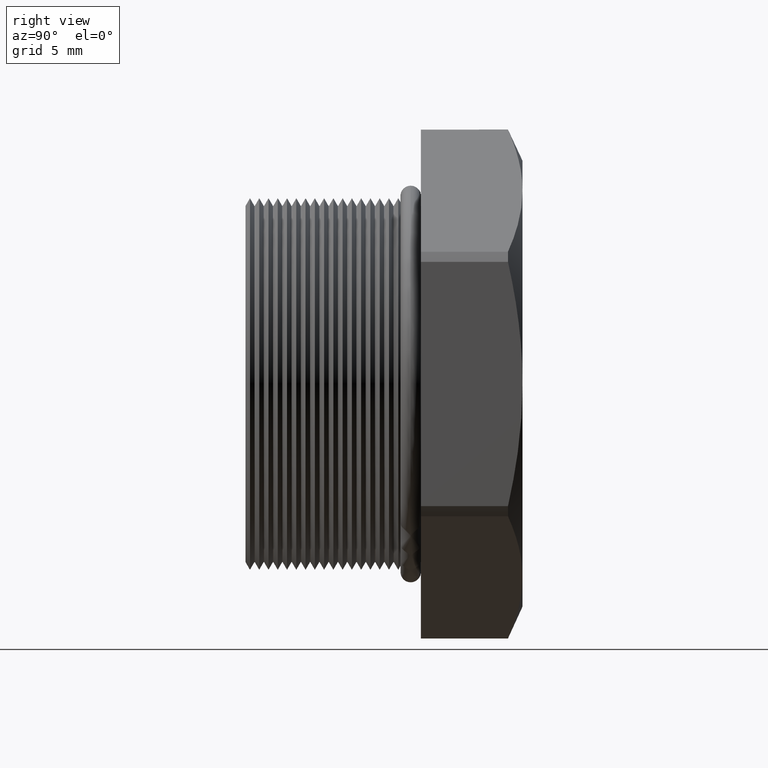
[diagram: clean part render]
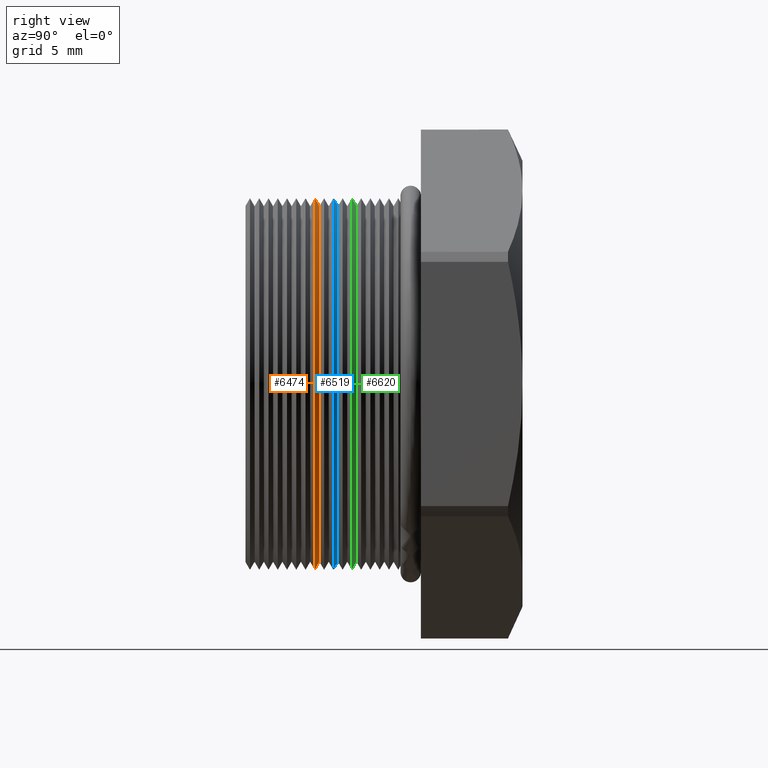
[diagram: same view with three faces highlighted in distinct colors, each labeled with its STEP entity id]
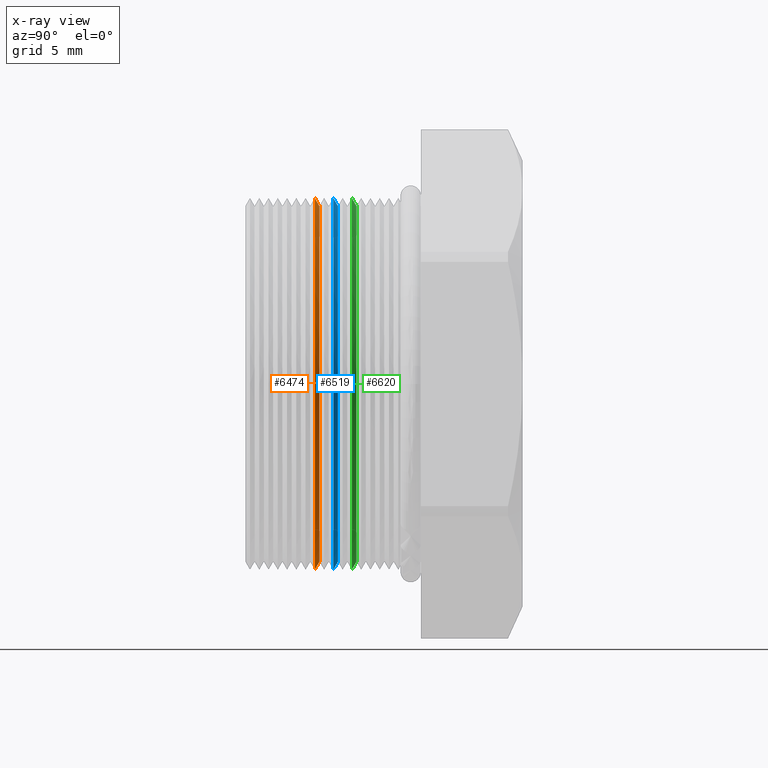
[diagram: x-ray of the same camera — body ghosted, the three highlighted faces saturated]
A machine part, right view with three faces highlighted in distinct colors.
The next image is the same camera in x-ray (body ghosted, the three faces saturated) — at least one of them is partly hidden behind the body in this view.
Their STEP definitions:

[orange] entity #6474 — the highlighted conical surface has half-angle 60 deg.
#2527 = DIRECTION ( 'NONE',  ( 0.0000000000000000000, -0.4999999999999991100, -0.8660254037844391500 ) ) ;
#2528 = VECTOR ( 'NONE', #2527, 39.37007874015748100 ) ;
#2529 = CARTESIAN_POINT ( 'NONE',  ( 0.0000000000000000000, 0.04790724481000891600, -0.3150000000000000000 ) ) ;
#2530 = LINE ( 'NONE', #2529, #2528 ) ;
#2543 = CARTESIAN_POINT ( 'NONE',  ( 3.857637417314162700E-017, 0.04790724481000891600, 0.3150000000000000000 ) ) ;
#2544 = CARTESIAN_POINT ( 'NONE',  ( 0.0000000000000000000, 0.04790724481000891600, -0.3150000000000000000 ) ) ;
#2545 = DIRECTION ( 'NONE',  ( 0.0000000000000000000, 0.0000000000000000000, -1.000000000000000000 ) ) ;
#2546 = DIRECTION ( 'NONE',  ( 0.0000000000000000000, -1.000000000000000000, 0.0000000000000000000 ) ) ;
#2547 = CARTESIAN_POINT ( 'NONE',  ( 0.0000000000000000000, 0.04790724481000891600, 0.0000000000000000000 ) ) ;
#2548 = AXIS2_PLACEMENT_3D ( 'NONE', #2547, #2546, #2545 ) ;
#2549 = DIRECTION ( 'NONE',  ( 0.0000000000000000000, 0.0000000000000000000, -1.000000000000000000 ) ) ;
#2550 = DIRECTION ( 'NONE',  ( 0.0000000000000000000, -1.000000000000000000, 0.0000000000000000000 ) ) ;
#2551 = CARTESIAN_POINT ( 'NONE',  ( 0.0000000000000000000, 0.04790724481000891600, 0.0000000000000000000 ) ) ;
#2552 = AXIS2_PLACEMENT_3D ( 'NONE', #2551, #2550, #2549 ) ;
#2553 = CIRCLE ( 'NONE', #2548, 0.3150000000000000000 ) ;
#2554 = CONICAL_SURFACE ( 'NONE', #2552, 0.3150000000000000000, 1.047197551196598700 ) ;
#2555 = FACE_OUTER_BOUND ( 'NONE', #6475, .T. ) ;
#2560 = DIRECTION ( 'NONE',  ( 0.0000000000000000000, 0.0000000000000000000, 1.000000000000000000 ) ) ;
#2561 = DIRECTION ( 'NONE',  ( -0.0000000000000000000, 1.000000000000000000, -0.0000000000000000000 ) ) ;
#2562 = CARTESIAN_POINT ( 'NONE',  ( 0.0000000000000000000, 0.03995489058294800200, 0.0000000000000000000 ) ) ;
#2563 = AXIS2_PLACEMENT_3D ( 'NONE', #2562, #2561, #2560 ) ;
#2564 = CIRCLE ( 'NONE', #2563, 0.3287738815610546400 ) ;
#2576 = CARTESIAN_POINT ( 'NONE',  ( 0.0000000000000000000, 0.03995489058294800200, -0.3287738815610546400 ) ) ;
#2602 = DIRECTION ( 'NONE',  ( 1.060575238724907500E-016, -0.4999999999999991100, 0.8660254037844391500 ) ) ;
#2603 = VECTOR ( 'NONE', #2602, 39.37007874015748100 ) ;
#2604 = CARTESIAN_POINT ( 'NONE',  ( 3.857637417314162700E-017, 0.04790724481000891600, 0.3150000000000000000 ) ) ;
#2605 = LINE ( 'NONE', #2604, #2603 ) ;
#2637 = CARTESIAN_POINT ( 'NONE',  ( 4.026318816969966200E-017, 0.03995489058294800200, 0.3287738815610546400 ) ) ;
#6456 = EDGE_CURVE ( 'NONE', #6478, #6496, #2530, .T. ) ;
#6471 = EDGE_CURVE ( 'NONE', #6497, #6496, #2564, .T. ) ;
#6474 = ADVANCED_FACE ( 'NONE', ( #2555 ), #2554, .T. ) ;
#6475 = EDGE_LOOP ( 'NONE', ( #6476, #6480, #6482, #6538 ) ) ;
#6476 = ORIENTED_EDGE ( 'NONE', *, *, #6477, .T. ) ;
#6477 = EDGE_CURVE ( 'NONE', #6478, #6479, #2553, .T. ) ;
#6478 = VERTEX_POINT ( 'NONE', #2544 ) ;
#6479 = VERTEX_POINT ( 'NONE', #2543 ) ;
#6480 = ORIENTED_EDGE ( 'NONE', *, *, #6481, .T. ) ;
#6481 = EDGE_CURVE ( 'NONE', #6479, #6497, #2605, .T. ) ;
#6482 = ORIENTED_EDGE ( 'NONE', *, *, #6471, .T. ) ;
#6496 = VERTEX_POINT ( 'NONE', #2576 ) ;
#6497 = VERTEX_POINT ( 'NONE', #2637 ) ;
#6538 = ORIENTED_EDGE ( 'NONE', *, *, #6456, .F. ) ;

[blue] entity #6519 — the highlighted conical surface has half-angle 60 deg.
#2633 = DIRECTION ( 'NONE',  ( 0.0000000000000000000, -0.4999999999999991100, -0.8660254037844391500 ) ) ;
#2634 = VECTOR ( 'NONE', #2633, 39.37007874015748100 ) ;
#2635 = CARTESIAN_POINT ( 'NONE',  ( 0.0000000000000000000, 0.08070724481000890500, -0.3150000000000000000 ) ) ;
#2636 = LINE ( 'NONE', #2635, #2634 ) ;
#2642 = CARTESIAN_POINT ( 'NONE',  ( 0.0000000000000000000, 0.08070724481000890500, -0.3150000000000000000 ) ) ;
#2643 = DIRECTION ( 'NONE',  ( 0.0000000000000000000, 0.0000000000000000000, -1.000000000000000000 ) ) ;
#2644 = DIRECTION ( 'NONE',  ( 0.0000000000000000000, -1.000000000000000000, 0.0000000000000000000 ) ) ;
#2645 = CARTESIAN_POINT ( 'NONE',  ( 0.0000000000000000000, 0.08070724481000890500, 0.0000000000000000000 ) ) ;
#2646 = AXIS2_PLACEMENT_3D ( 'NONE', #2645, #2644, #2643 ) ;
#2647 = DIRECTION ( 'NONE',  ( 0.0000000000000000000, 0.0000000000000000000, -1.000000000000000000 ) ) ;
#2648 = DIRECTION ( 'NONE',  ( 0.0000000000000000000, -1.000000000000000000, 0.0000000000000000000 ) ) ;
#2649 = CARTESIAN_POINT ( 'NONE',  ( 0.0000000000000000000, 0.08070724481000890500, 0.0000000000000000000 ) ) ;
#2650 = AXIS2_PLACEMENT_3D ( 'NONE', #2649, #2648, #2647 ) ;
#2651 = CONICAL_SURFACE ( 'NONE', #2650, 0.3150000000000000000, 1.047197551196598700 ) ;
#2652 = CIRCLE ( 'NONE', #2646, 0.3150000000000000000 ) ;
#2653 = FACE_OUTER_BOUND ( 'NONE', #6520, .T. ) ;
#2658 = CARTESIAN_POINT ( 'NONE',  ( 4.026318816969966200E-017, 0.07275489058294798400, 0.3287738815610546400 ) ) ;
#2659 = DIRECTION ( 'NONE',  ( 0.0000000000000000000, 0.0000000000000000000, 1.000000000000000000 ) ) ;
#2660 = DIRECTION ( 'NONE',  ( -0.0000000000000000000, 1.000000000000000000, -0.0000000000000000000 ) ) ;
#2661 = CARTESIAN_POINT ( 'NONE',  ( 0.0000000000000000000, 0.07275489058294798400, 0.0000000000000000000 ) ) ;
#2662 = AXIS2_PLACEMENT_3D ( 'NONE', #2661, #2660, #2659 ) ;
#2663 = CIRCLE ( 'NONE', #2662, 0.3287738815610546400 ) ;
#2664 = CARTESIAN_POINT ( 'NONE',  ( 0.0000000000000000000, 0.07275489058294798400, -0.3287738815610546400 ) ) ;
#2782 = DIRECTION ( 'NONE',  ( 1.060575238724907500E-016, -0.4999999999999991100, 0.8660254037844391500 ) ) ;
#2783 = VECTOR ( 'NONE', #2782, 39.37007874015748100 ) ;
#2784 = CARTESIAN_POINT ( 'NONE',  ( 3.857637417314162700E-017, 0.08070724481000890500, 0.3150000000000000000 ) ) ;
#2785 = LINE ( 'NONE', #2784, #2783 ) ;
#2786 = CARTESIAN_POINT ( 'NONE',  ( 3.857637417314162700E-017, 0.08070724481000890500, 0.3150000000000000000 ) ) ;
#6498 = EDGE_CURVE ( 'NONE', #6523, #6513, #2636, .T. ) ;
#6513 = VERTEX_POINT ( 'NONE', #2664 ) ;
#6515 = EDGE_CURVE ( 'NONE', #6516, #6513, #2663, .T. ) ;
#6516 = VERTEX_POINT ( 'NONE', #2658 ) ;
#6519 = ADVANCED_FACE ( 'NONE', ( #2653 ), #2651, .T. ) ;
#6520 = EDGE_LOOP ( 'NONE', ( #6521, #6577, #6579, #6580 ) ) ;
#6521 = ORIENTED_EDGE ( 'NONE', *, *, #6522, .T. ) ;
#6522 = EDGE_CURVE ( 'NONE', #6523, #6576, #2652, .T. ) ;
#6523 = VERTEX_POINT ( 'NONE', #2642 ) ;
#6576 = VERTEX_POINT ( 'NONE', #2786 ) ;
#6577 = ORIENTED_EDGE ( 'NONE', *, *, #6578, .T. ) ;
#6578 = EDGE_CURVE ( 'NONE', #6576, #6516, #2785, .T. ) ;
#6579 = ORIENTED_EDGE ( 'NONE', *, *, #6515, .T. ) ;
#6580 = ORIENTED_EDGE ( 'NONE', *, *, #6498, .F. ) ;

[green] entity #6620 — the highlighted conical surface has half-angle 60 deg.
#2669 = CARTESIAN_POINT ( 'NONE',  ( 3.857637417314162700E-017, 0.1135072448100089100, 0.3150000000000000000 ) ) ;
#2670 = LINE ( 'NONE', #2669, #2732 ) ;
#2671 = CARTESIAN_POINT ( 'NONE',  ( 3.857637417314162700E-017, 0.1135072448100089100, 0.3150000000000000000 ) ) ;
#2677 = CARTESIAN_POINT ( 'NONE',  ( 0.0000000000000000000, 0.1135072448100089100, -0.3150000000000000000 ) ) ;
#2727 = DIRECTION ( 'NONE',  ( 0.0000000000000000000, -0.4999999999999991100, -0.8660254037844391500 ) ) ;
#2728 = VECTOR ( 'NONE', #2727, 39.37007874015748100 ) ;
#2729 = CARTESIAN_POINT ( 'NONE',  ( 0.0000000000000000000, 0.1135072448100089100, -0.3150000000000000000 ) ) ;
#2730 = LINE ( 'NONE', #2729, #2728 ) ;
#2731 = DIRECTION ( 'NONE',  ( 1.060575238724907500E-016, -0.4999999999999991100, 0.8660254037844391500 ) ) ;
#2732 = VECTOR ( 'NONE', #2731, 39.37007874015748100 ) ;
#2757 = DIRECTION ( 'NONE',  ( 0.0000000000000000000, 0.0000000000000000000, 1.000000000000000000 ) ) ;
#2758 = DIRECTION ( 'NONE',  ( -0.0000000000000000000, 1.000000000000000000, -0.0000000000000000000 ) ) ;
#2759 = CARTESIAN_POINT ( 'NONE',  ( 0.0000000000000000000, 0.1055548905829479900, 0.0000000000000000000 ) ) ;
#2760 = AXIS2_PLACEMENT_3D ( 'NONE', #2759, #2758, #2757 ) ;
#2761 = CIRCLE ( 'NONE', #2760, 0.3287738815610546400 ) ;
#2762 = CARTESIAN_POINT ( 'NONE',  ( 0.0000000000000000000, 0.1055548905829479900, -0.3287738815610546400 ) ) ;
#2827 = DIRECTION ( 'NONE',  ( 0.0000000000000000000, 0.0000000000000000000, -1.000000000000000000 ) ) ;
#2828 = DIRECTION ( 'NONE',  ( 0.0000000000000000000, -1.000000000000000000, 0.0000000000000000000 ) ) ;
#2829 = CARTESIAN_POINT ( 'NONE',  ( 0.0000000000000000000, 0.1135072448100089100, 0.0000000000000000000 ) ) ;
#2830 = AXIS2_PLACEMENT_3D ( 'NONE', #2829, #2828, #2827 ) ;
#2831 = DIRECTION ( 'NONE',  ( 0.0000000000000000000, 0.0000000000000000000, -1.000000000000000000 ) ) ;
#2832 = DIRECTION ( 'NONE',  ( 0.0000000000000000000, -1.000000000000000000, 0.0000000000000000000 ) ) ;
#2833 = CARTESIAN_POINT ( 'NONE',  ( 0.0000000000000000000, 0.1135072448100089100, 0.0000000000000000000 ) ) ;
#2834 = AXIS2_PLACEMENT_3D ( 'NONE', #2833, #2832, #2831 ) ;
#2835 = CIRCLE ( 'NONE', #2830, 0.3150000000000000000 ) ;
#2836 = CONICAL_SURFACE ( 'NONE', #2834, 0.3150000000000000000, 1.047197551196598700 ) ;
#2837 = FACE_OUTER_BOUND ( 'NONE', #6621, .T. ) ;
#2847 = CARTESIAN_POINT ( 'NONE',  ( 4.026318816969966200E-017, 0.1055548905829479900, 0.3287738815610546400 ) ) ;
#6539 = VERTEX_POINT ( 'NONE', #2677 ) ;
#6540 = VERTEX_POINT ( 'NONE', #2671 ) ;
#6541 = ORIENTED_EDGE ( 'NONE', *, *, #6542, .T. ) ;
#6542 = EDGE_CURVE ( 'NONE', #6540, #6617, #2670, .T. ) ;
#6543 = ORIENTED_EDGE ( 'NONE', *, *, #6560, .T. ) ;
#6544 = ORIENTED_EDGE ( 'NONE', *, *, #6545, .F. ) ;
#6545 = EDGE_CURVE ( 'NONE', #6539, #6558, #2730, .T. ) ;
#6558 = VERTEX_POINT ( 'NONE', #2762 ) ;
#6560 = EDGE_CURVE ( 'NONE', #6617, #6558, #2761, .T. ) ;
#6617 = VERTEX_POINT ( 'NONE', #2847 ) ;
#6620 = ADVANCED_FACE ( 'NONE', ( #2837 ), #2836, .T. ) ;
#6621 = EDGE_LOOP ( 'NONE', ( #6622, #6541, #6543, #6544 ) ) ;
#6622 = ORIENTED_EDGE ( 'NONE', *, *, #6623, .T. ) ;
#6623 = EDGE_CURVE ( 'NONE', #6539, #6540, #2835, .T. ) ;